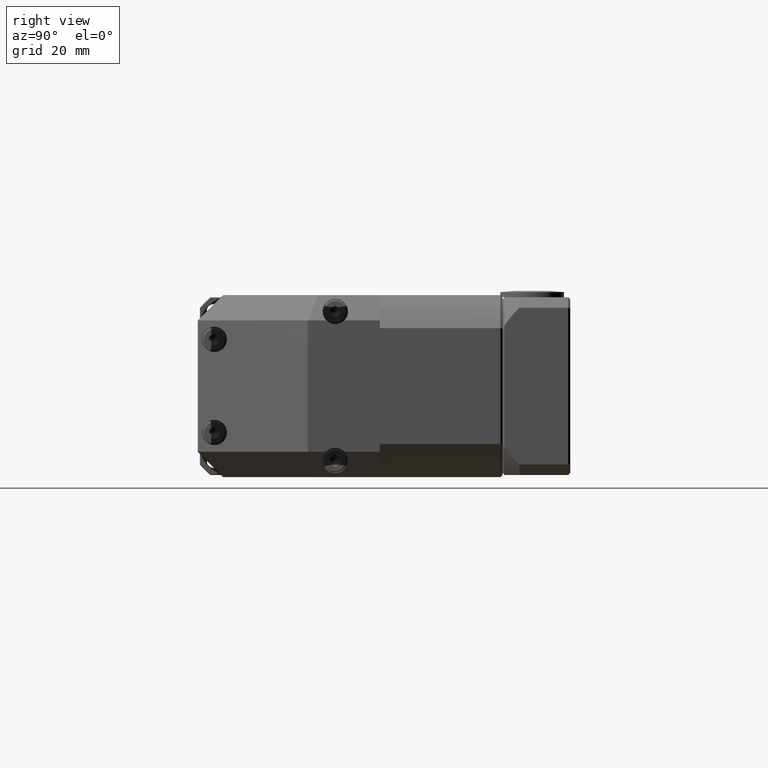
[diagram: clean part render]
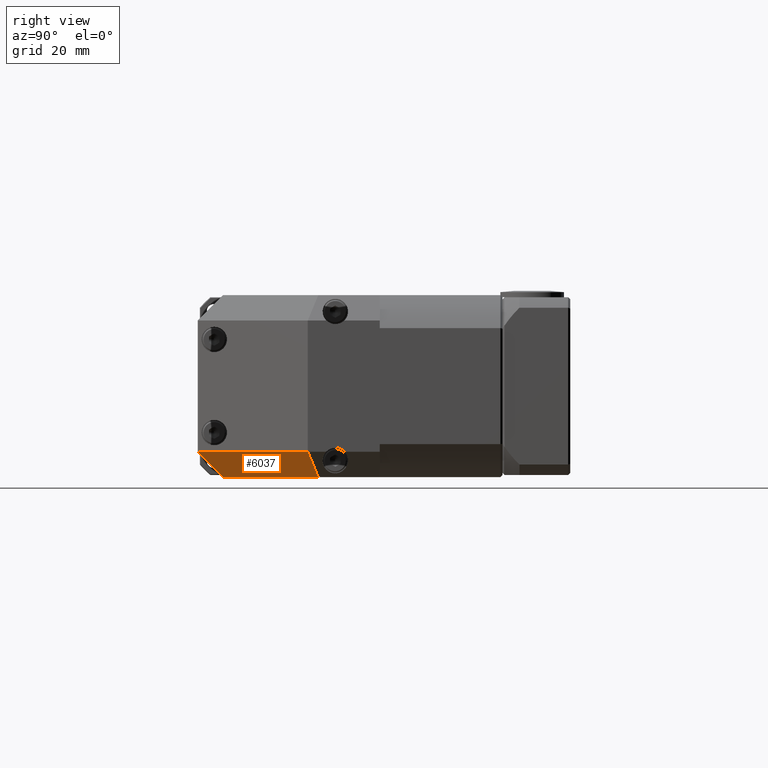
[diagram: same view with one face highlighted and labeled with its STEP entity id]
A machine part, right view. The second image highlights one B-rep face of the part: STEP entity #6037.
In plain terms, the highlighted planar face has unit normal (0.5, -0.5, -0.7071).
Its self-contained STEP definition (entity closure, byte-faithful):
#310=LINE('',#9834,#621);
#321=LINE('',#9894,#632);
#324=LINE('',#9898,#635);
#325=LINE('',#9900,#636);
#621=VECTOR('',#7832,31.7989898732233);
#632=VECTOR('',#7867,8.8417545492474);
#635=VECTOR('',#7872,8.84175454924741);
#636=VECTOR('',#7875,36.7695526217005);
#1378=FACE_OUTER_BOUND('',#1871,.T.);
#1871=EDGE_LOOP('',(#4541,#4542,#4543,#4544));
#2727=VERTEX_POINT('',#9706);
#2758=VERTEX_POINT('',#9817);
#2763=VERTEX_POINT('',#9831);
#2764=VERTEX_POINT('',#9833);
#3404=EDGE_CURVE('',#2764,#2763,#310,.T.);
#3421=EDGE_CURVE('',#2727,#2763,#321,.T.);
#3424=EDGE_CURVE('',#2764,#2758,#324,.T.);
#3425=EDGE_CURVE('',#2727,#2758,#325,.T.);
#4541=ORIENTED_EDGE('',*,*,#3425,.T.);
#4542=ORIENTED_EDGE('',*,*,#3424,.F.);
#4543=ORIENTED_EDGE('',*,*,#3404,.T.);
#4544=ORIENTED_EDGE('',*,*,#3421,.F.);
#5454=PLANE('',#6618);
#6037=ADVANCED_FACE('',(#1378),#5454,.T.);
#6618=AXIS2_PLACEMENT_3D('',#9899,#7873,#7874);
#7832=DIRECTION('',(0.707106781186548,0.707106781186547,1.38477657202997E-15));
#7867=DIRECTION('',(-0.678598344545847,0.281084637714821,-0.678598344545846));
#7872=DIRECTION('',(0.281084637714819,-0.678598344545849,0.678598344545846));
#7873=DIRECTION('center_axis',(0.5,-0.499999999999999,-0.707106781186548));
#7874=DIRECTION('ref_axis',(0.816496580927726,-1.59872115546023E-15,0.577350269189626));
#7875=DIRECTION('',(-0.707106781186548,-0.707106781186547,-1.38477657202997E-15));
#9706=CARTESIAN_POINT('',(82.1917864952593,10.5526784650906,-20.0713600451766));
#9817=CARTESIAN_POINT('',(56.1917864952593,-15.4473215349094,-20.0713600451766));
#9831=CARTESIAN_POINT('',(76.1917864952593,13.0379598393291,-26.0713600451766));
#9833=CARTESIAN_POINT('',(53.7065051210207,-9.4473215349094,-26.0713600451766));
#9834=CARTESIAN_POINT('',(51.32414580814,-11.8296808477901,-26.0713600451766));
#9894=CARTESIAN_POINT('',(82.1917864952593,10.5526784650906,-20.0713600451766));
#9898=CARTESIAN_POINT('',(53.7065051210207,-9.4473215349094,-26.0713600451766));
#9899=CARTESIAN_POINT('Origin',(53.4454661516997,-13.9510011913498,-23.0713600451766));
#9900=CARTESIAN_POINT('',(55.5667864952593,-16.0723215349094,-20.0713600451766));